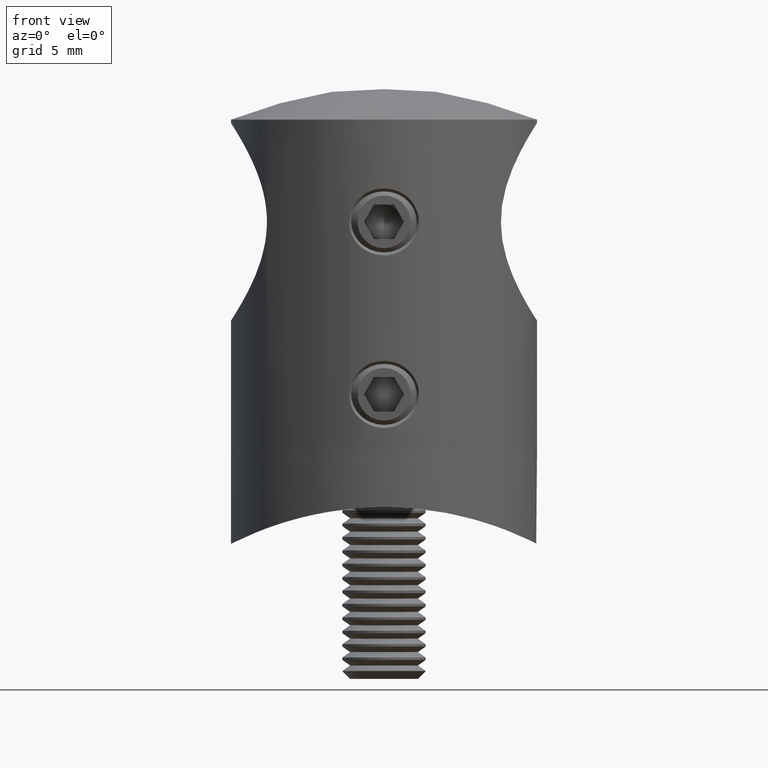
[diagram: clean part render]
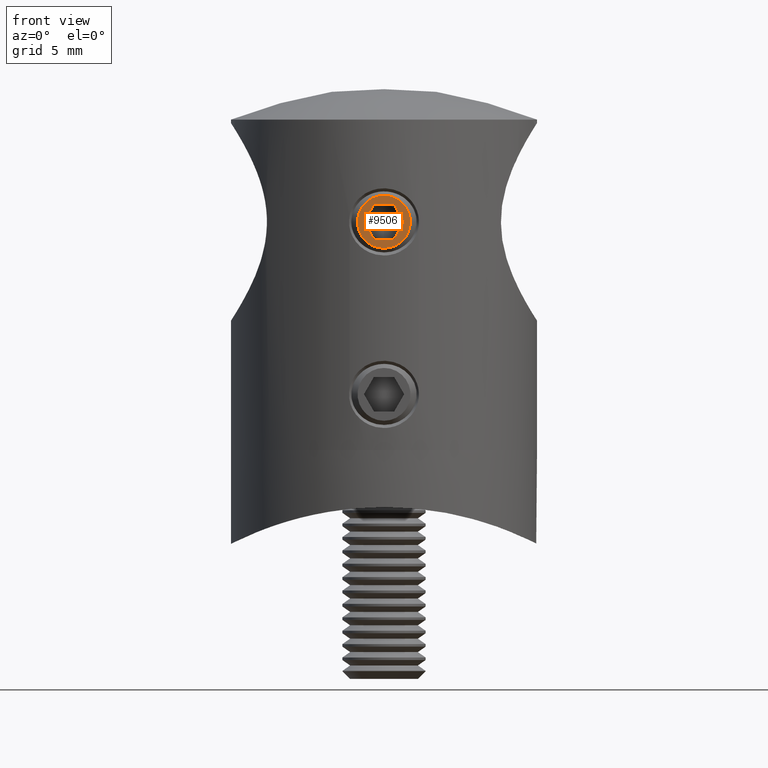
[diagram: same view with one face highlighted and labeled with its STEP entity id]
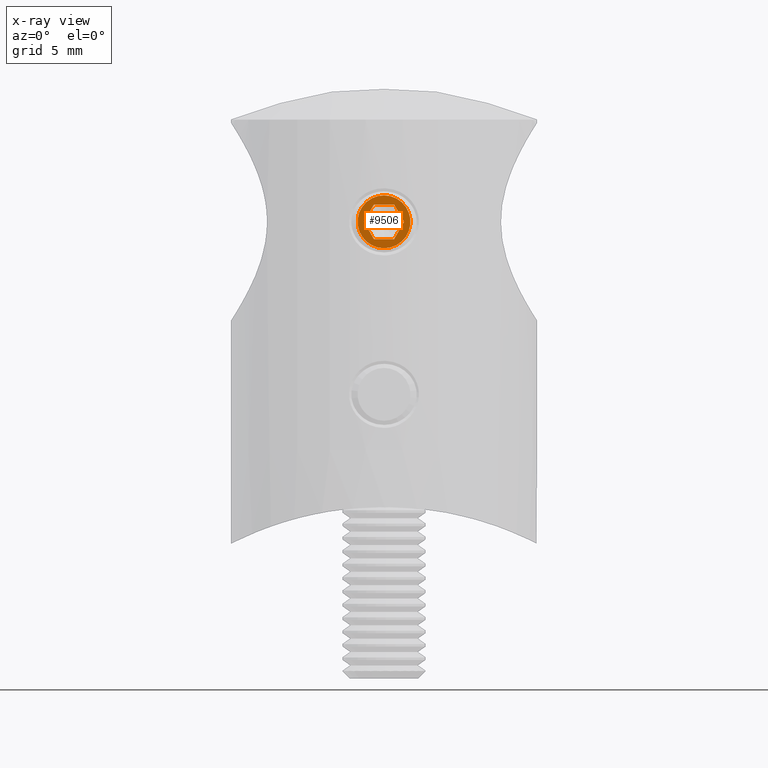
[diagram: x-ray of the same camera — body ghosted, the highlighted face saturated]
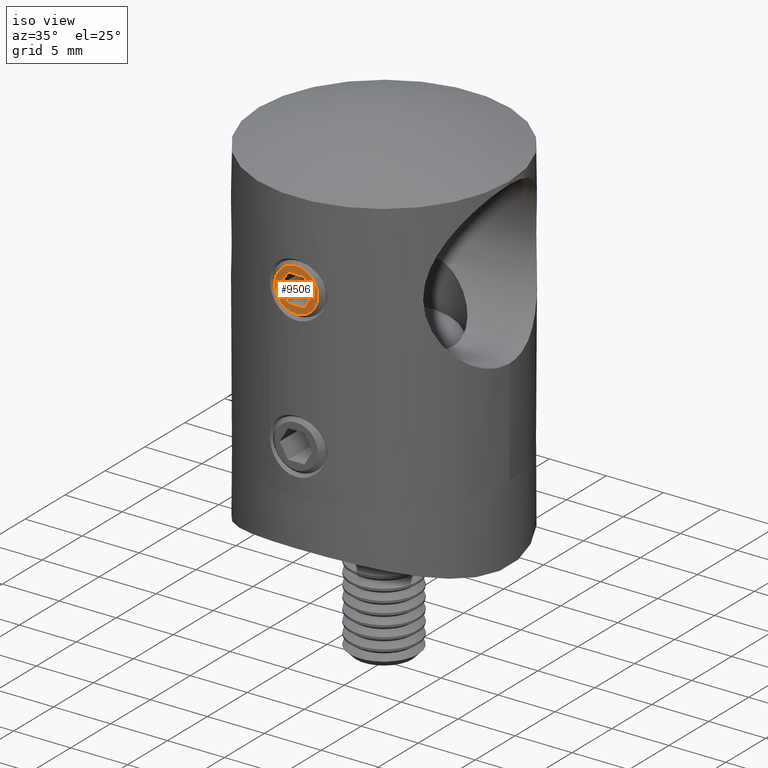
[diagram: same view with one face highlighted and labeled with its STEP entity id]
A machine part, front view. The second image highlights one B-rep face of the part: STEP entity #9506.
The next image is the same camera in x-ray: the body ghosted, the highlighted face saturated — about 0% of this face is hidden behind the body in this view.
A second angle (iso view) of the same face is appended — the face is thin or edge-on in the first view.
In plain terms, the highlighted planar face has unit normal (-0, -1, 0).
Its self-contained STEP definition (entity closure, byte-faithful):
#257 = CARTESIAN_POINT ( 'NONE',  ( 5.000000000000000000, -0.7216878364870327200, -1.249999999999999300 ) ) ;
#389 = EDGE_CURVE ( 'NONE', #9970, #6797, #13152, .T. ) ;
#474 = FACE_BOUND ( 'NONE', #23225, .T. ) ;
#1052 = ORIENTED_EDGE ( 'NONE', *, *, #3597, .F. ) ;
#1239 = AXIS2_PLACEMENT_3D ( 'NONE', #4882, #14269, #8679 ) ;
#1512 = CARTESIAN_POINT ( 'NONE',  ( 5.000000000000000000, 0.7216878364870340500, -1.249999999999998900 ) ) ;
#1602 = VERTEX_POINT ( 'NONE', #9816 ) ;
#3247 = LINE ( 'NONE', #5343, #18462 ) ;
#3595 = VECTOR ( 'NONE', #14863, 1000.000000000000200 ) ;
#3597 = EDGE_CURVE ( 'NONE', #8940, #6595, #18781, .T. ) ;
#3774 = DIRECTION ( 'NONE',  ( 0.0000000000000000000, 0.0000000000000000000, -1.000000000000000000 ) ) ;
#4103 = CARTESIAN_POINT ( 'NONE',  ( 5.000000000000000000, 0.7216878364870340500, -1.249999999999998900 ) ) ;
#4581 = ORIENTED_EDGE ( 'NONE', *, *, #389, .F. ) ;
#4882 = CARTESIAN_POINT ( 'NONE',  ( 5.000000000000000000, 0.0000000000000000000, 0.0000000000000000000 ) ) ;
#5043 = ORIENTED_EDGE ( 'NONE', *, *, #7311, .F. ) ;
#5206 = VERTEX_POINT ( 'NONE', #1512 ) ;
#5343 = CARTESIAN_POINT ( 'NONE',  ( 5.000000000000000000, 0.7216878364870338300, 1.250000000000000400 ) ) ;
#5853 = CARTESIAN_POINT ( 'NONE',  ( 5.000000000000000000, 0.7216878364870338300, 1.250000000000000400 ) ) ;
#5892 = DIRECTION ( 'NONE',  ( 0.0000000000000000000, 1.000000000000000000, 3.004629197474313600E-016 ) ) ;
#6595 = VERTEX_POINT ( 'NONE', #21342 ) ;
#6791 = LINE ( 'NONE', #16241, #21737 ) ;
#6797 = VERTEX_POINT ( 'NONE', #5853 ) ;
#7120 = VECTOR ( 'NONE', #19090, 1000.000000000000200 ) ;
#7311 = EDGE_CURVE ( 'NONE', #6797, #8940, #3247, .T. ) ;
#8508 = VECTOR ( 'NONE', #5892, 1000.000000000000000 ) ;
#8679 = DIRECTION ( 'NONE',  ( 0.0000000000000000000, 0.0000000000000000000, -1.000000000000000000 ) ) ;
#8856 = LINE ( 'NONE', #4103, #7120 ) ;
#8940 = VERTEX_POINT ( 'NONE', #18075 ) ;
#9129 = EDGE_CURVE ( 'NONE', #11169, #5206, #12244, .T. ) ;
#9330 = CARTESIAN_POINT ( 'NONE',  ( 5.000000000000000000, 0.0000000000000000000, 0.0000000000000000000 ) ) ;
#9506 = ADVANCED_FACE ( 'NONE', ( #474, #23449 ), #18525, .T. ) ;
#9816 = CARTESIAN_POINT ( 'NONE',  ( 5.000000000000000000, 0.0000000000000000000, -1.900000000000000100 ) ) ;
#9970 = VERTEX_POINT ( 'NONE', #20457 ) ;
#9997 = ORIENTED_EDGE ( 'NONE', *, *, #11093, .T. ) ;
#10443 = EDGE_CURVE ( 'NONE', #6595, #11169, #6791, .T. ) ;
#11093 = EDGE_CURVE ( 'NONE', #1602, #1602, #19386, .T. ) ;
#11161 = DIRECTION ( 'NONE',  ( 1.000000000000000000, 0.0000000000000000000, 0.0000000000000000000 ) ) ;
#11169 = VERTEX_POINT ( 'NONE', #14342 ) ;
#12244 = LINE ( 'NONE', #257, #8508 ) ;
#12401 = DIRECTION ( 'NONE',  ( 0.0000000000000000000, 0.4999999999999995000, -0.8660254037844389300 ) ) ;
#13152 = LINE ( 'NONE', #14857, #19442 ) ;
#13212 = EDGE_LOOP ( 'NONE', ( #9997 ) ) ;
#14269 = DIRECTION ( 'NONE',  ( 1.000000000000000000, 0.0000000000000000000, 0.0000000000000000000 ) ) ;
#14342 = CARTESIAN_POINT ( 'NONE',  ( 5.000000000000000000, -0.7216878364870327200, -1.249999999999999300 ) ) ;
#14747 = ORIENTED_EDGE ( 'NONE', *, *, #9129, .F. ) ;
#14857 = CARTESIAN_POINT ( 'NONE',  ( 5.000000000000000000, 1.443375672974066100, 3.510950658916429000E-016 ) ) ;
#14863 = DIRECTION ( 'NONE',  ( 0.0000000000000000000, -0.4999999999999998900, -0.8660254037844386000 ) ) ;
#16241 = CARTESIAN_POINT ( 'NONE',  ( 5.000000000000000000, -1.443375672974063900, 4.248569400808785300E-016 ) ) ;
#17554 = ORIENTED_EDGE ( 'NONE', *, *, #21962, .F. ) ;
#18075 = CARTESIAN_POINT ( 'NONE',  ( 5.000000000000000000, -0.7216878364870317200, 1.250000000000000400 ) ) ;
#18462 = VECTOR ( 'NONE', #19944, 1000.000000000000000 ) ;
#18525 = PLANE ( 'NONE',  #22748 ) ;
#18548 = DIRECTION ( 'NONE',  ( 0.0000000000000000000, -0.4999999999999998900, 0.8660254037844386000 ) ) ;
#18781 = LINE ( 'NONE', #20262, #3595 ) ;
#19090 = DIRECTION ( 'NONE',  ( 0.0000000000000000000, 0.5000000000000000000, 0.8660254037844386000 ) ) ;
#19386 = CIRCLE ( 'NONE', #1239, 1.900000000000000100 ) ;
#19442 = VECTOR ( 'NONE', #18548, 1000.000000000000200 ) ;
#19944 = DIRECTION ( 'NONE',  ( 0.0000000000000000000, -1.000000000000000000, 0.0000000000000000000 ) ) ;
#20262 = CARTESIAN_POINT ( 'NONE',  ( 5.000000000000000000, -0.7216878364870317200, 1.250000000000000400 ) ) ;
#20457 = CARTESIAN_POINT ( 'NONE',  ( 5.000000000000000000, 1.443375672974066100, 3.510950658916429000E-016 ) ) ;
#21342 = CARTESIAN_POINT ( 'NONE',  ( 5.000000000000000000, -1.443375672974064100, 5.421010862427522200E-016 ) ) ;
#21737 = VECTOR ( 'NONE', #12401, 1000.000000000000000 ) ;
#21962 = EDGE_CURVE ( 'NONE', #5206, #9970, #8856, .T. ) ;
#22748 = AXIS2_PLACEMENT_3D ( 'NONE', #9330, #11161, #3774 ) ;
#23020 = ORIENTED_EDGE ( 'NONE', *, *, #10443, .F. ) ;
#23225 = EDGE_LOOP ( 'NONE', ( #1052, #5043, #4581, #17554, #14747, #23020 ) ) ;
#23449 = FACE_OUTER_BOUND ( 'NONE', #13212, .T. ) ;